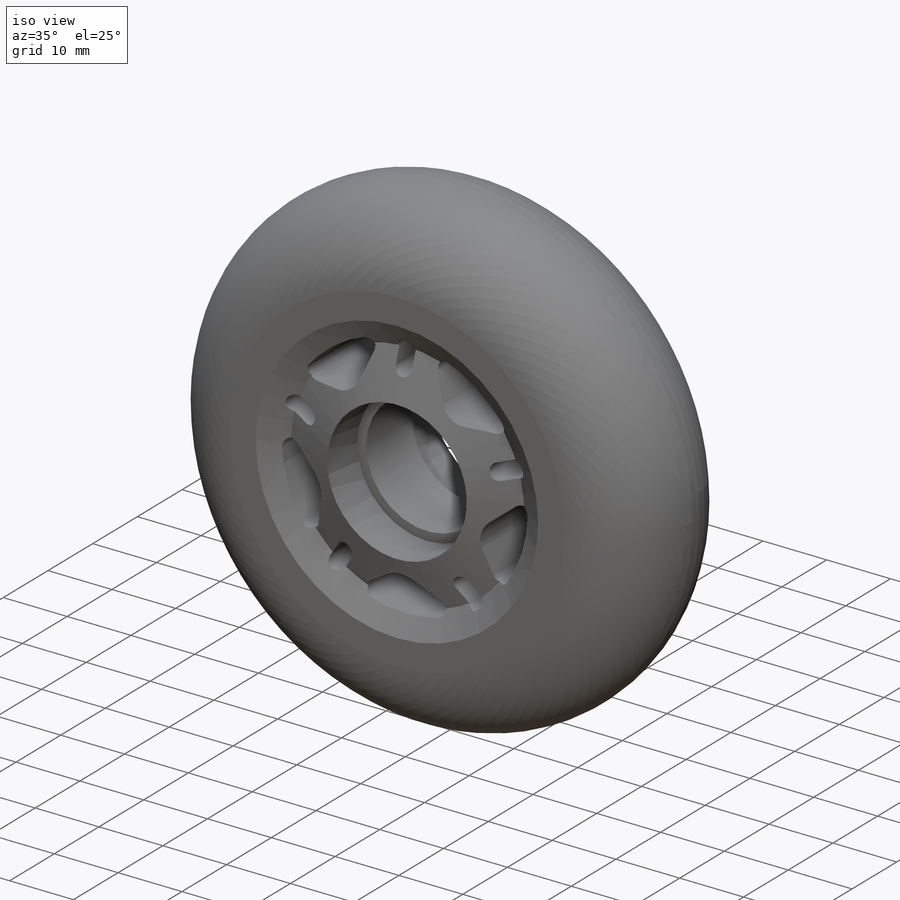
[diagram: iso view]
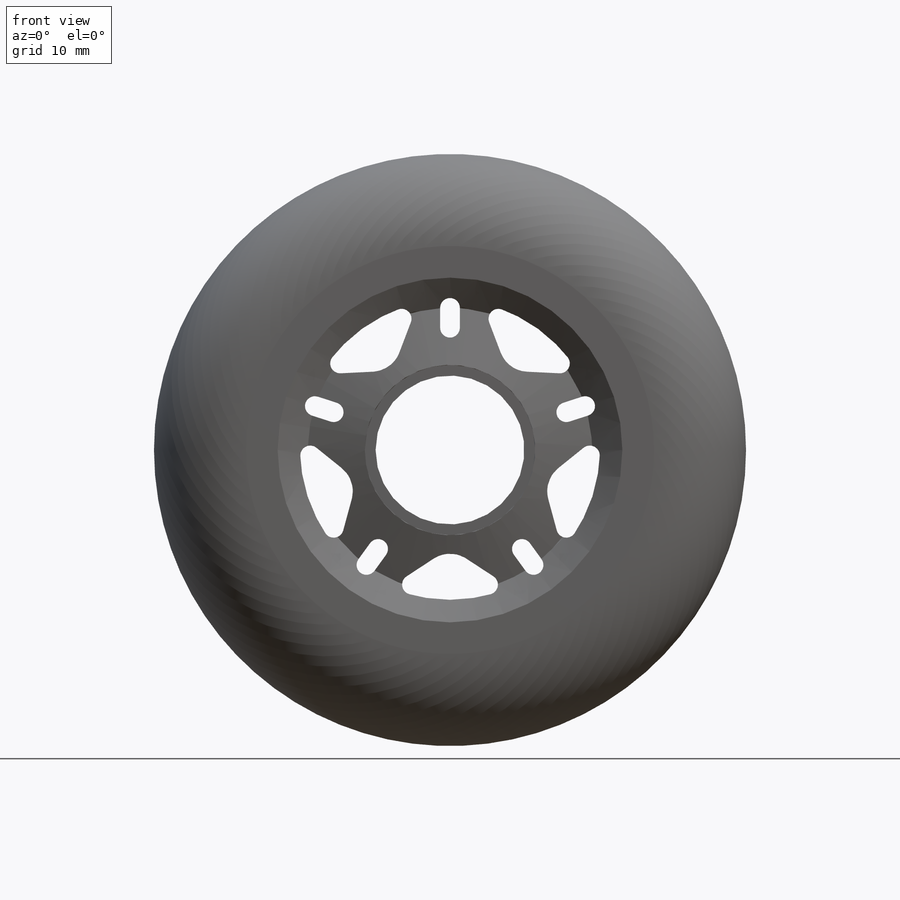
[diagram: front view]
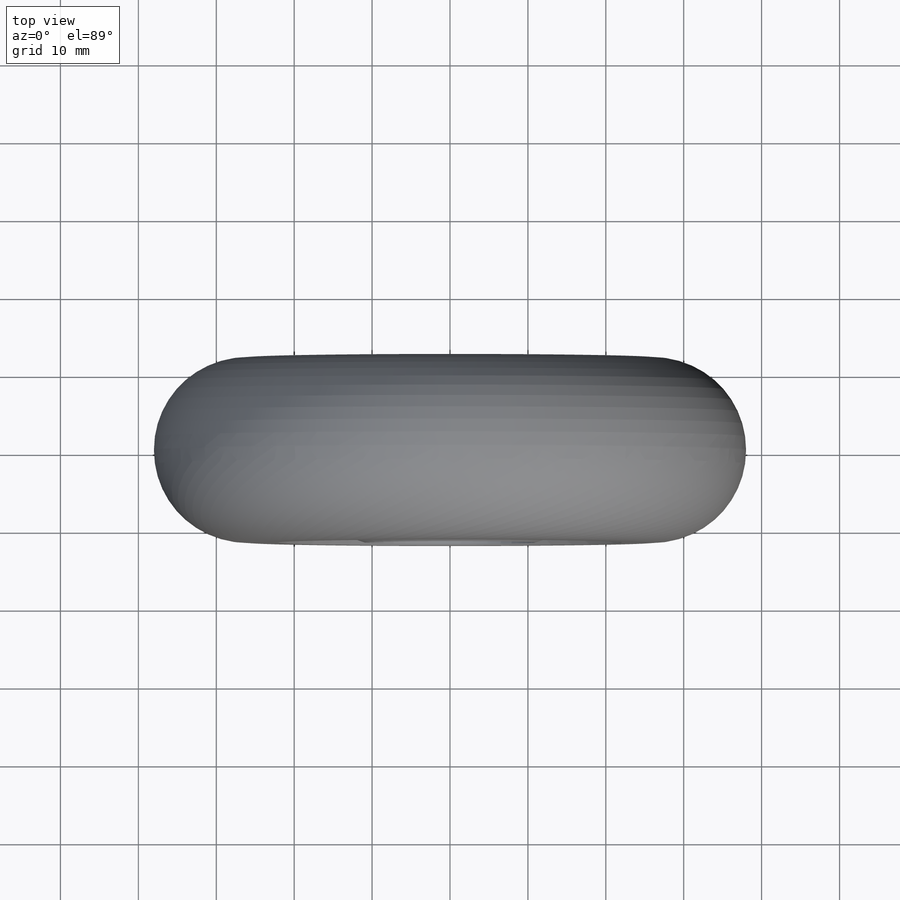
[diagram: top view]
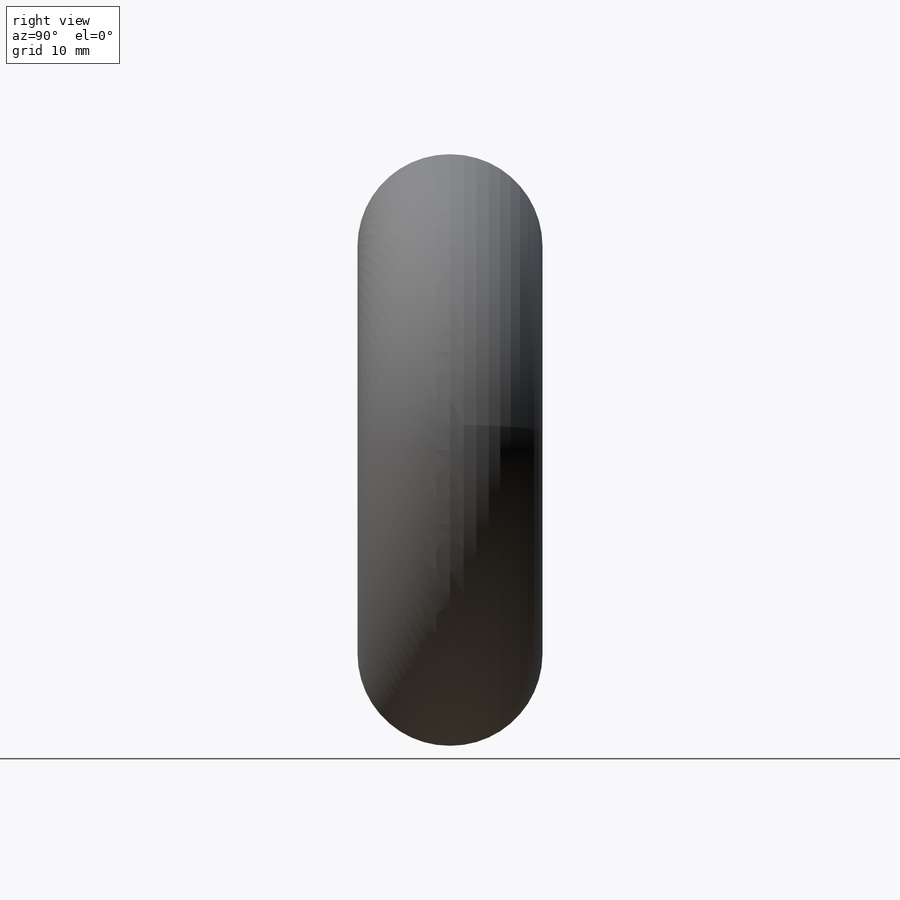
[diagram: right view]
SOLIDWORKS PART (.sldprt)
format: sldprt  version: not decoded by parser v0  size: 460,800 bytes
history: native  units: mm
features: sketch x7, cut_extrude x4, fillet x3, mirror x2, pattern_circular x2, material x1, extrude x1, cut_revolve x1 (+11 scaffold rows collapsed)
feature tree (32):
  scaffold x11  (default folders/planes/origin — collapsed)
  material  "Material <not specified>"
  sketch  "Sketch1"  dims[D1=~75.99934mm]
  extrude  "Boss-Extrude1"  Depth=23.749mm
  fillet  "Fillet11"  Radius=11.811mm
  sketch  "Sketch5"  dims[D1=21.8694mm]
  cut_extrude  "Cut-Extrude1"  Depth=6.731mm
  sketch  "Sketch7"  dims[D1=19.1008mm]
  cut_extrude  "Cut-Extrude3"  [1 undecoded]
  mirror  "Mirror1"
  sketch  "Sketch9"  dims[D1=2.3876mm D2=3.8862mm D3=4.064mm]
  cut_revolve  "Cut-Revolve1"  Angle=360deg
  sketch  "Sketch10"  dims[D1=18.7706mm D2=12.573mm D3=15.4178mm D4=~7.205741mm]
  cut_extrude  "Cut-Extrude4"  [1 undecoded]
  fillet  "Fillet12"  Radius=3.81mm
  fillet  "Fillet14"  Radius=1.27mm
  sketch  "Sketch11"
  pattern_circular  "CirPattern1"  Count=5 Angle=360deg
  mirror  "Mirror3"
  sketch  "Sketch12"  dims[c1.D1=3.5052mm c1.D2=2.54mm c2.D1=2.54mm]
  cut_extrude  "Cut-Extrude5"  [1 undecoded]
  pattern_circular  "CirPattern2"  Count=5 Angle=360deg
decode coverage: 14 of 20 modeling features carry decoded parameters
note: ~ marks probable driven/reference dimensions
note: 3 parameter values undecoded
summary: no parameter record found for 3 features
note: suppression state not decoded; provenance and decode notes live in map.json
